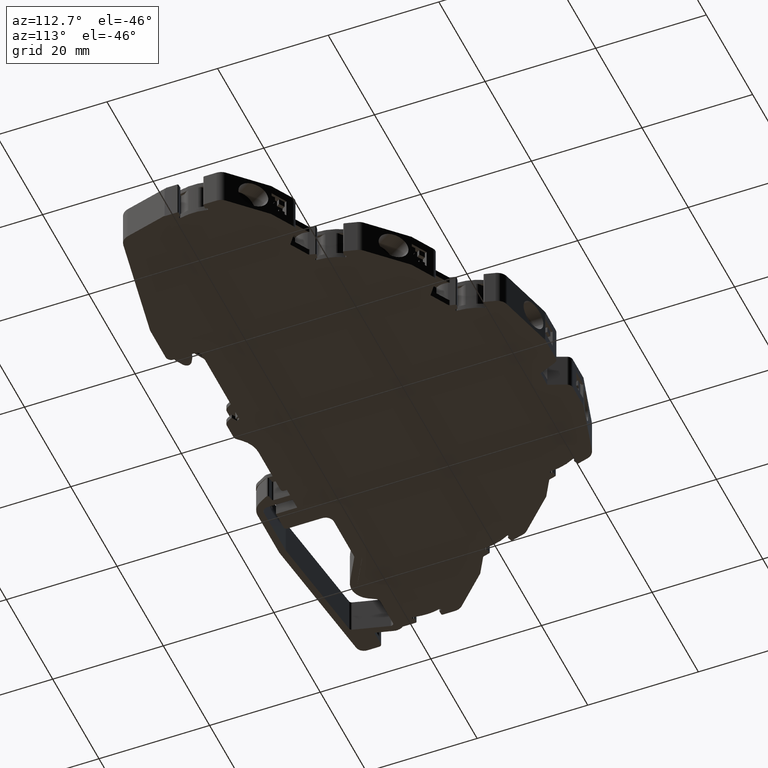
[diagram: clean part render]
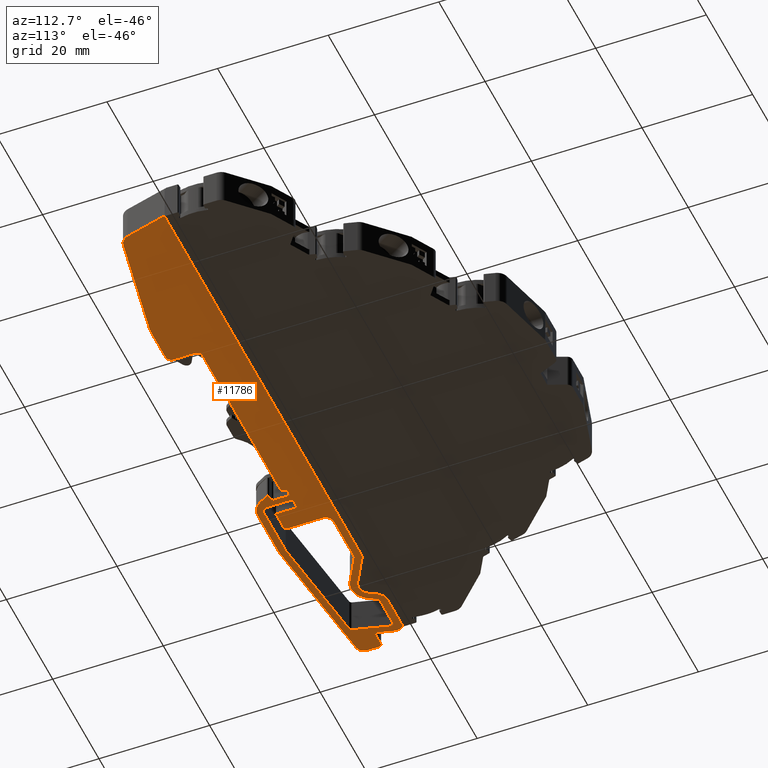
[diagram: same view with one face highlighted and labeled with its STEP entity id]
A machine part, auxiliary view. The second image highlights one B-rep face of the part: STEP entity #11786.
In plain terms, the highlighted planar face has unit normal (0, 0, -1).
Its self-contained STEP definition (entity closure, byte-faithful):
#386 = CARTESIAN_POINT ( 'NONE',  ( 1.714999999999999900, 5.453652908804101300, -0.3450000000000010300 ) ) ;
#395 = LINE ( 'NONE', #386, #14800 ) ;
#397 = DIRECTION ( 'NONE',  ( -1.000000000000000000, 0.0000000000000000000, -0.0000000000000000000 ) ) ;
#503 = CARTESIAN_POINT ( 'NONE',  ( 205.6886590453769900, 10.26804246194675900, -0.3449999999999980900 ) ) ;
#506 = DIRECTION ( 'NONE',  ( -0.0000000000000000000, -0.0000000000000000000, -1.000000000000000000 ) ) ;
#512 = DIRECTION ( 'NONE',  ( 0.0000000000000000000, 1.000000000000000000, 0.0000000000000000000 ) ) ;
#514 = LINE ( 'NONE', #518, #13462 ) ;
#516 = DIRECTION ( 'NONE',  ( 1.000000000000000000, 0.0000000000000000000, 0.0000000000000000000 ) ) ;
#517 = CARTESIAN_POINT ( 'NONE',  ( 259.2201345379305100, 11.27553656191200000, -0.3449999999999980900 ) ) ;
#518 = CARTESIAN_POINT ( 'NONE',  ( 1.714999999999999900, 5.453652308662713100, -0.3450000000000010300 ) ) ;
#521 = DIRECTION ( 'NONE',  ( 0.0000000000000000000, 0.0000000000000000000, 1.000000000000000000 ) ) ;
#522 = CARTESIAN_POINT ( 'NONE',  ( 279.8425590747290800, 6.453652283857839400, -0.3449999999999980900 ) ) ;
#524 = LINE ( 'NONE', #517, #13527 ) ;
#525 = DIRECTION ( 'NONE',  ( -0.0000000000000000000, -0.0000000000000000000, -1.000000000000000000 ) ) ;
#527 = CARTESIAN_POINT ( 'NONE',  ( 277.8425590747290800, 10.27553869041494000, -0.3449999999999980900 ) ) ;
#530 = LINE ( 'NONE', #536, #13448 ) ;
#534 = DIRECTION ( 'NONE',  ( 1.000000000000000000, 0.0000000000000000000, 0.0000000000000000000 ) ) ;
#536 = CARTESIAN_POINT ( 'NONE',  ( 241.2375600996530000, 0.0000000000000000000, -0.3450000000000010300 ) ) ;
#539 = LINE ( 'NONE', #540, #13494 ) ;
#540 = CARTESIAN_POINT ( 'NONE',  ( 1.714999999999999900, 12.93240326027163600, -0.3450000000000010300 ) ) ;
#542 = DIRECTION ( 'NONE',  ( 1.000000000000000000, 6.938892518842751900E-015, 0.0000000000000000000 ) ) ;
#546 = DIRECTION ( 'NONE',  ( 1.000000000000000000, -0.0000000000000000000, 0.0000000000000000000 ) ) ;
#548 = DIRECTION ( 'NONE',  ( 0.9999999999999935600, 1.142978427374678900E-007, 0.0000000000000000000 ) ) ;
#552 = CARTESIAN_POINT ( 'NONE',  ( 240.1156887614475000, 8.453650703092829800, -0.3449999999999980900 ) ) ;
#554 = DIRECTION ( 'NONE',  ( -1.000000000000000000, 0.0000000000000000000, -0.0000000000000000000 ) ) ;
#557 = DIRECTION ( 'NONE',  ( 1.000000000000000000, -2.891205793294622600E-015, 0.0000000000000000000 ) ) ;
#558 = CARTESIAN_POINT ( 'NONE',  ( 235.3775523067075100, 0.0000000000000000000, -0.3450000000000010300 ) ) ;
#562 = DIRECTION ( 'NONE',  ( 0.0000000000000000000, 1.000000000000000000, 0.0000000000000000000 ) ) ;
#571 = LINE ( 'NONE', #575, #13475 ) ;
#574 = DIRECTION ( 'NONE',  ( -0.0000000000000000000, -0.0000000000000000000, -1.000000000000000000 ) ) ;
#575 = CARTESIAN_POINT ( 'NONE',  ( 1.714999999999999900, 6.653654132609679200, -0.3450000000000010300 ) ) ;
#576 = DIRECTION ( 'NONE',  ( 1.000000000000000000, -0.0000000000000000000, 0.0000000000000000000 ) ) ;
#588 = LINE ( 'NONE', #558, #13471 ) ;
#596 = LINE ( 'NONE', #634, #13458 ) ;
#597 = DIRECTION ( 'NONE',  ( -0.9914448644735848200, 0.1305261686749244500, 0.0000000000000000000 ) ) ;
#598 = LINE ( 'NONE', #601, #13452 ) ;
#601 = CARTESIAN_POINT ( 'NONE',  ( 230.4926974972639800, 5.489585710628845500, -0.3450000000000010300 ) ) ;
#611 = CARTESIAN_POINT ( 'NONE',  ( 306.5945232437428000, 8.986520480360912400, -0.3450000000000010300 ) ) ;
#623 = DIRECTION ( 'NONE',  ( -0.9848077430902918400, -0.1736482339369036200, 0.0000000000000000000 ) ) ;
#632 = DIRECTION ( 'NONE',  ( 0.0000000000000000000, 1.000000000000000000, 0.0000000000000000000 ) ) ;
#634 = CARTESIAN_POINT ( 'NONE',  ( 204.1886587459640600, 0.0000000000000000000, -0.3450000000000010300 ) ) ;
#636 = LINE ( 'NONE', #611, #13541 ) ;
#642 = DIRECTION ( 'NONE',  ( -0.2587892217248280400, 0.9659338169455802300, 0.0000000000000000000 ) ) ;
#644 = LINE ( 'NONE', #661, #13663 ) ;
#645 = DIRECTION ( 'NONE',  ( -1.000000000000000000, 0.0000000000000000000, -0.0000000000000000000 ) ) ;
#652 = LINE ( 'NONE', #672, #13563 ) ;
#657 = LINE ( 'NONE', #671, #13661 ) ;
#660 = LINE ( 'NONE', #670, #13565 ) ;
#661 = CARTESIAN_POINT ( 'NONE',  ( 243.5898725184148600, 8.471114791411324100, -0.3450000000000010300 ) ) ;
#664 = LINE ( 'NONE', #696, #13591 ) ;
#667 = CARTESIAN_POINT ( 'NONE',  ( 278.8425590747290800, 0.0000000000000000000, -0.3450000000000010300 ) ) ;
#669 = LINE ( 'NONE', #681, #13559 ) ;
#670 = CARTESIAN_POINT ( 'NONE',  ( 1.714999999999999900, 16.65365054067097400, -0.3450000000000010300 ) ) ;
#671 = CARTESIAN_POINT ( 'NONE',  ( 242.3375564023443800, 0.0000000000000000000, -0.3450000000000010300 ) ) ;
#672 = CARTESIAN_POINT ( 'NONE',  ( 1.714999999999999900, 11.27553869041494600, -0.3450000000000010300 ) ) ;
#673 = LINE ( 'NONE', #667, #13557 ) ;
#675 = CARTESIAN_POINT ( 'NONE',  ( 1.714999999999999900, 16.65365165461454900, -0.3450000000000010300 ) ) ;
#677 = DIRECTION ( 'NONE',  ( -1.000000000000000000, 0.0000000000000000000, -0.0000000000000000000 ) ) ;
#678 = DIRECTION ( 'NONE',  ( -0.4999996771534385700, -0.8660255901799074300, 0.0000000000000000000 ) ) ;
#679 = LINE ( 'NONE', #675, #13603 ) ;
#681 = CARTESIAN_POINT ( 'NONE',  ( 207.4909535282767500, 12.93240327112651400, -0.3450000000000010300 ) ) ;
#682 = DIRECTION ( 'NONE',  ( -1.000000000000000000, 0.0000000000000000000, -0.0000000000000000000 ) ) ;
#685 = DIRECTION ( 'NONE',  ( 0.0000000000000000000, 1.000000000000000000, 0.0000000000000000000 ) ) ;
#686 = DIRECTION ( 'NONE',  ( -0.0000000000000000000, -1.000000000000000000, -0.0000000000000000000 ) ) ;
#689 = CARTESIAN_POINT ( 'NONE',  ( 306.2472267758689700, 10.95613596654143900, -0.3449999999999980900 ) ) ;
#696 = CARTESIAN_POINT ( 'NONE',  ( 209.9998964459480200, 9.397868660948809300, -0.3450000000000010300 ) ) ;
#700 = DIRECTION ( 'NONE',  ( 0.9914448660161235800, -0.1305261569581769600, 0.0000000000000000000 ) ) ;
#722 = DIRECTION ( 'NONE',  ( -1.000000000000000000, 0.0000000000000000000, 0.0000000000000000000 ) ) ;
#728 = DIRECTION ( 'NONE',  ( 0.0000000000000000000, 0.0000000000000000000, -1.000000000000000000 ) ) ;
#734 = DIRECTION ( 'NONE',  ( -1.000000000000000000, 0.0000000000000000000, -0.0000000000000000000 ) ) ;
#738 = LINE ( 'NONE', #771, #13621 ) ;
#749 = DIRECTION ( 'NONE',  ( 0.2588017249943155300, -0.9659304670316422000, 0.0000000000000000000 ) ) ;
#766 = DIRECTION ( 'NONE',  ( -0.0000000000000000000, -1.000000000000000000, -0.0000000000000000000 ) ) ;
#770 = LINE ( 'NONE', #774, #13605 ) ;
#771 = CARTESIAN_POINT ( 'NONE',  ( 239.2375604103144700, 0.0000000000000000000, -0.3450000000000010300 ) ) ;
#774 = CARTESIAN_POINT ( 'NONE',  ( 207.9049352689776800, 16.02425428770468900, -0.3450000000000010300 ) ) ;
#776 = LINE ( 'NONE', #777, #13640 ) ;
#777 = CARTESIAN_POINT ( 'NONE',  ( 1.714999999999999900, 8.388774649715822200, -0.3450000000000010300 ) ) ;
#783 = CARTESIAN_POINT ( 'NONE',  ( 233.8775560752951000, 15.15365165461455100, -0.3450000000000011400 ) ) ;
#787 = DIRECTION ( 'NONE',  ( 0.0000000000000000000, 0.0000000000000000000, 1.000000000000000000 ) ) ;
#792 = DIRECTION ( 'NONE',  ( 1.000000000000000000, 0.0000000000000000000, 0.0000000000000000000 ) ) ;
#823 = CARTESIAN_POINT ( 'NONE',  ( 218.2802566032234800, 16.78925736135439800, -0.3450000000000015300 ) ) ;
#829 = DIRECTION ( 'NONE',  ( 1.000000000000000000, 4.956351789211807100E-015, 0.0000000000000000000 ) ) ;
#844 = DIRECTION ( 'NONE',  ( -0.0000000000000000000, -0.0000000000000000000, -1.000000000000000000 ) ) ;
#847 = CARTESIAN_POINT ( 'NONE',  ( 224.8132370359317100, 16.51967312186624400, -0.3450000000000010300 ) ) ;
#854 = LINE ( 'NONE', #847, #13698 ) ;
#859 = DIRECTION ( 'NONE',  ( -0.8660214484722443800, -0.5000068507391031100, 0.0000000000000000000 ) ) ;
#1185 = ORIENTED_EDGE ( 'NONE', *, *, #22454, .T. ) ;
#1187 = ORIENTED_EDGE ( 'NONE', *, *, #4526, .T. ) ;
#1192 = ORIENTED_EDGE ( 'NONE', *, *, #22460, .T. ) ;
#1196 = ORIENTED_EDGE ( 'NONE', *, *, #22450, .T. ) ;
#1198 = ORIENTED_EDGE ( 'NONE', *, *, #4475, .T. ) ;
#1199 = ORIENTED_EDGE ( 'NONE', *, *, #4521, .T. ) ;
#1204 = ORIENTED_EDGE ( 'NONE', *, *, #22432, .T. ) ;
#1205 = ORIENTED_EDGE ( 'NONE', *, *, #22370, .T. ) ;
#1207 = ORIENTED_EDGE ( 'NONE', *, *, #22375, .T. ) ;
#1208 = ORIENTED_EDGE ( 'NONE', *, *, #4518, .T. ) ;
#1209 = ORIENTED_EDGE ( 'NONE', *, *, #4565, .F. ) ;
#1212 = ORIENTED_EDGE ( 'NONE', *, *, #22407, .T. ) ;
#1213 = ORIENTED_EDGE ( 'NONE', *, *, #4284, .F. ) ;
#1215 = ORIENTED_EDGE ( 'NONE', *, *, #3908, .T. ) ;
#1219 = ORIENTED_EDGE ( 'NONE', *, *, #4451, .T. ) ;
#1220 = ORIENTED_EDGE ( 'NONE', *, *, #22431, .T. ) ;
#1221 = ORIENTED_EDGE ( 'NONE', *, *, #22424, .T. ) ;
#1225 = ORIENTED_EDGE ( 'NONE', *, *, #22394, .T. ) ;
#1226 = ORIENTED_EDGE ( 'NONE', *, *, #4516, .T. ) ;
#1227 = ORIENTED_EDGE ( 'NONE', *, *, #22359, .T. ) ;
#1229 = ORIENTED_EDGE ( 'NONE', *, *, #22402, .T. ) ;
#1255 = ORIENTED_EDGE ( 'NONE', *, *, #4507, .T. ) ;
#1267 = ORIENTED_EDGE ( 'NONE', *, *, #3889, .T. ) ;
#1286 = ORIENTED_EDGE ( 'NONE', *, *, #22405, .T. ) ;
#1288 = ORIENTED_EDGE ( 'NONE', *, *, #4543, .T. ) ;
#2501 = VERTEX_POINT ( 'NONE', #16117 ) ;
#2524 = VERTEX_POINT ( 'NONE', #16181 ) ;
#2949 = ORIENTED_EDGE ( 'NONE', *, *, #22625, .T. ) ;
#2952 = ORIENTED_EDGE ( 'NONE', *, *, #22399, .T. ) ;
#2953 = ORIENTED_EDGE ( 'NONE', *, *, #22393, .T. ) ;
#2954 = ORIENTED_EDGE ( 'NONE', *, *, #22308, .T. ) ;
#2955 = ORIENTED_EDGE ( 'NONE', *, *, #3804, .F. ) ;
#2957 = ORIENTED_EDGE ( 'NONE', *, *, #22387, .T. ) ;
#2958 = ORIENTED_EDGE ( 'NONE', *, *, #4436, .F. ) ;
#2959 = ORIENTED_EDGE ( 'NONE', *, *, #22657, .T. ) ;
#2960 = ORIENTED_EDGE ( 'NONE', *, *, #22645, .T. ) ;
#2961 = ORIENTED_EDGE ( 'NONE', *, *, #22653, .T. ) ;
#2965 = ORIENTED_EDGE ( 'NONE', *, *, #4444, .F. ) ;
#2970 = ORIENTED_EDGE ( 'NONE', *, *, #22351, .T. ) ;
#2971 = ORIENTED_EDGE ( 'NONE', *, *, #4403, .F. ) ;
#2973 = ORIENTED_EDGE ( 'NONE', *, *, #22392, .T. ) ;
#2974 = ORIENTED_EDGE ( 'NONE', *, *, #22683, .T. ) ;
#2975 = ORIENTED_EDGE ( 'NONE', *, *, #4402, .F. ) ;
#2979 = ORIENTED_EDGE ( 'NONE', *, *, #22381, .T. ) ;
#2980 = ORIENTED_EDGE ( 'NONE', *, *, #22384, .T. ) ;
#2981 = ORIENTED_EDGE ( 'NONE', *, *, #22358, .T. ) ;
#2983 = ORIENTED_EDGE ( 'NONE', *, *, #22410, .T. ) ;
#2987 = ORIENTED_EDGE ( 'NONE', *, *, #22366, .T. ) ;
#2996 = ORIENTED_EDGE ( 'NONE', *, *, #22670, .T. ) ;
#2997 = ORIENTED_EDGE ( 'NONE', *, *, #22367, .T. ) ;
#2999 = ORIENTED_EDGE ( 'NONE', *, *, #22352, .T. ) ;
#3000 = ORIENTED_EDGE ( 'NONE', *, *, #22649, .T. ) ;
#3002 = ORIENTED_EDGE ( 'NONE', *, *, #3762, .T. ) ;
#3004 = ORIENTED_EDGE ( 'NONE', *, *, #22633, .T. ) ;
#3006 = ORIENTED_EDGE ( 'NONE', *, *, #22622, .F. ) ;
#3007 = ORIENTED_EDGE ( 'NONE', *, *, #22354, .T. ) ;
#3762 = EDGE_CURVE ( 'NONE', #6377, #6417, #15774, .T. ) ;
#3804 = EDGE_CURVE ( 'NONE', #6622, #6399, #15796, .T. ) ;
#3889 = EDGE_CURVE ( 'NONE', #19897, #19890, #16806, .T. ) ;
#3908 = EDGE_CURVE ( 'NONE', #19826, #6466, #16849, .T. ) ;
#4284 = EDGE_CURVE ( 'NONE', #2524, #2501, #10652, .T. ) ;
#4386 = EDGE_CURVE ( 'NONE', #18586, #18538, #15442, .T. ) ;
#4402 = EDGE_CURVE ( 'NONE', #18460, #18508, #15463, .T. ) ;
#4403 = EDGE_CURVE ( 'NONE', #18420, #18570, #15415, .T. ) ;
#4436 = EDGE_CURVE ( 'NONE', #6399, #2524, #15522, .T. ) ;
#4444 = EDGE_CURVE ( 'NONE', #18562, #18414, #15512, .T. ) ;
#4451 = EDGE_CURVE ( 'NONE', #18616, #18706, #15519, .T. ) ;
#4475 = EDGE_CURVE ( 'NONE', #18558, #2501, #15497, .T. ) ;
#4507 = EDGE_CURVE ( 'NONE', #18648, #18650, #15536, .T. ) ;
#4516 = EDGE_CURVE ( 'NONE', #18666, #18690, #15549, .T. ) ;
#4518 = EDGE_CURVE ( 'NONE', #18612, #18682, #15583, .T. ) ;
#4521 = EDGE_CURVE ( 'NONE', #18614, #18662, #15586, .T. ) ;
#4526 = EDGE_CURVE ( 'NONE', #18598, #18578, #15537, .T. ) ;
#4543 = EDGE_CURVE ( 'NONE', #18708, #18666, #9396, .T. ) ;
#4557 = EDGE_CURVE ( 'NONE', #19826, #18586, #9433, .T. ) ;
#4565 = EDGE_CURVE ( 'NONE', #18652, #18580, #15624, .T. ) ;
#5367 = CARTESIAN_POINT ( 'NONE',  ( 286.9894377300924500, 5.529613790183488800, -0.3449999999999980900 ) ) ;
#5400 = CARTESIAN_POINT ( 'NONE',  ( 204.6886600393535500, 12.93240326027161300, -0.3449999999999980900 ) ) ;
#5428 = CARTESIAN_POINT ( 'NONE',  ( 231.0409074820675800, 5.453653524218620600, -0.3449999999999980900 ) ) ;
#5433 = CARTESIAN_POINT ( 'NONE',  ( 230.4926975003542700, 5.489585710221999400, -0.3449999999999953700 ) ) ;
#5439 = CARTESIAN_POINT ( 'NONE',  ( 242.3375562073696300, 9.352473529440665300, -0.3449999999999980900 ) ) ;
#5443 = CARTESIAN_POINT ( 'NONE',  ( 286.1211965693357800, 5.453652308349819400, -0.3449999999999980900 ) ) ;
#5466 = CARTESIAN_POINT ( 'NONE',  ( 244.1875071269969300, 11.27553484483553500, -0.3449999999999980900 ) ) ;
#5488 = CARTESIAN_POINT ( 'NONE',  ( 207.9049352521168400, 16.02425435063478100, -0.3450000000000015300 ) ) ;
#5495 = CARTESIAN_POINT ( 'NONE',  ( 225.3132440525734800, 16.65365165461454900, -0.3450000000000015300 ) ) ;
#5500 = CARTESIAN_POINT ( 'NONE',  ( 235.8775522395731300, 8.388774649715820400, -0.3450000000000015300 ) ) ;
#5514 = CARTESIAN_POINT ( 'NONE',  ( 213.7397420260838000, 16.65365054067097400, -0.3450000000000015300 ) ) ;
#5518 = CARTESIAN_POINT ( 'NONE',  ( 224.8132370290159700, 16.51967311787335600, -0.3450000000000014700 ) ) ;
#5519 = CARTESIAN_POINT ( 'NONE',  ( 235.3775523067075400, 8.888774784403981500, -0.3450000000000015300 ) ) ;
#5520 = CARTESIAN_POINT ( 'NONE',  ( 243.6875479276259900, 11.77553484429126300, -0.3449999999999980900 ) ) ;
#5521 = CARTESIAN_POINT ( 'NONE',  ( 214.6057659691501600, 16.15365303187901000, -0.3450000000000015300 ) ) ;
#5525 = CARTESIAN_POINT ( 'NONE',  ( 208.3878969584820300, 16.65365062106171800, -0.3450000000000015300 ) ) ;
#5527 = CARTESIAN_POINT ( 'NONE',  ( 240.2375600996530000, 6.653654132609679200, -0.3450000000000014700 ) ) ;
#5528 = CARTESIAN_POINT ( 'NONE',  ( 204.1886587459640600, 12.43240199845012000, -0.3449999999999988600 ) ) ;
#5530 = CARTESIAN_POINT ( 'NONE',  ( 230.6493330154172000, 6.679319509955856700, -0.3449999999999980900 ) ) ;
#5540 = CARTESIAN_POINT ( 'NONE',  ( 209.9998963310931400, 9.397868676069736100, -0.3450000000000015300 ) ) ;
#5544 = CARTESIAN_POINT ( 'NONE',  ( 209.5821940771321900, 9.764190202238506100, -0.3450000000000014700 ) ) ;
#5550 = CARTESIAN_POINT ( 'NONE',  ( 231.0409112750834900, 6.653654132609679200, -0.3449999999999997000 ) ) ;
#5584 = CARTESIAN_POINT ( 'NONE',  ( 241.2375600996530000, 7.653654138968719600, -0.3450000000000014700 ) ) ;
#5597 = CARTESIAN_POINT ( 'NONE',  ( 215.2491721027668600, 15.03924830687755900, -0.3450000000000015300 ) ) ;
#5743 = CARTESIAN_POINT ( 'NONE',  ( 233.8775560752951000, 16.65365165461454900, -0.3450000000000012500 ) ) ;
#5744 = CARTESIAN_POINT ( 'NONE',  ( 205.4928697083929300, 8.780874874294710300, -0.3449999999999980900 ) ) ;
#5754 = CARTESIAN_POINT ( 'NONE',  ( 235.3775541910015400, 15.15365165461349400, -0.3450000000000011400 ) ) ;
#5757 = CARTESIAN_POINT ( 'NONE',  ( 277.8425590711572700, 11.27553869041494900, -0.3449999999999980900 ) ) ;
#5759 = CARTESIAN_POINT ( 'NONE',  ( 279.8425590747290800, 5.453652296260276700, -0.3449999999999980900 ) ) ;
#5763 = CARTESIAN_POINT ( 'NONE',  ( 207.4909535302155100, 12.93240326388992400, -0.3449999999999815400 ) ) ;
#5776 = CARTESIAN_POINT ( 'NONE',  ( 278.8425590747290800, 6.453652283857842100, -0.3449999999999988600 ) ) ;
#5777 = CARTESIAN_POINT ( 'NONE',  ( 308.1790925047513400, 10.43855041267524600, -0.3450000000000005800 ) ) ;
#5786 = CARTESIAN_POINT ( 'NONE',  ( 245.8273385436240200, 11.27553503114431200, -0.3449999999999995300 ) ) ;
#5787 = CARTESIAN_POINT ( 'NONE',  ( 278.8425590747290800, 10.27553869041494000, -0.3449999999999988600 ) ) ;
#5790 = CARTESIAN_POINT ( 'NONE',  ( 306.5945232437428000, 8.986520480360910700, -0.3449999999999980900 ) ) ;
#5795 = CARTESIAN_POINT ( 'NONE',  ( 220.0302809865872000, 13.75818171114517900, -0.3450000000000014700 ) ) ;
#5797 = CARTESIAN_POINT ( 'NONE',  ( 239.2375604103144400, 8.388774649715822200, -0.3450000000000011900 ) ) ;
#5799 = CARTESIAN_POINT ( 'NONE',  ( 240.1187706993962400, 5.453652905184855000, -0.3449999999999988600 ) ) ;
#5805 = CARTESIAN_POINT ( 'NONE',  ( 204.1886587459640600, 10.26804245728483200, -0.3449999999999988600 ) ) ;
#5855 = CARTESIAN_POINT ( 'NONE',  ( 242.7137655319872900, 6.953651671632481900, -0.3449999999999988600 ) ) ;
#5872 = CARTESIAN_POINT ( 'NONE',  ( 216.3749997513804100, 15.68925423248840400, -0.3450000000000010300 ) ) ;
#5884 = CARTESIAN_POINT ( 'NONE',  ( 310.1925530282970300, 17.95365942521603800, -0.3450000259776806500 ) ) ;
#5886 = CARTESIAN_POINT ( 'NONE',  ( 219.3802670665751600, 14.88401223435419500, -0.3450000000000010300 ) ) ;
#5896 = CARTESIAN_POINT ( 'NONE',  ( 224.1632248565719300, 17.64550302038740200, -0.3450000000000010300 ) ) ;
#5922 = CARTESIAN_POINT ( 'NONE',  ( 225.3132401042720100, 17.95365339502456000, -0.3450000000000010300 ) ) ;
#5926 = CARTESIAN_POINT ( 'NONE',  ( 213.7397384005606100, 17.95365339502480100, -0.3450000000000010300 ) ) ;
#5953 = CARTESIAN_POINT ( 'NONE',  ( 243.6875479276260100, 12.25791767009104500, -0.3450000000000000300 ) ) ;
#5967 = CARTESIAN_POINT ( 'NONE',  ( 207.0625282688686200, 17.95367167768877400, -0.3449998995928350000 ) ) ;
#5980 = CARTESIAN_POINT ( 'NONE',  ( 215.7315935278365900, 16.80365911324689800, -0.3450000000000010300 ) ) ;
#6020 = CARTESIAN_POINT ( 'NONE',  ( 239.2375604103144400, 12.25791767009105000, -0.3450000000000011900 ) ) ;
#6026 = CARTESIAN_POINT ( 'NONE',  ( 241.2375600795042800, 12.25791767009104300, -0.3450000000000009700 ) ) ;
#6377 = VERTEX_POINT ( 'NONE', #8058 ) ;
#6399 = VERTEX_POINT ( 'NONE', #8048 ) ;
#6417 = VERTEX_POINT ( 'NONE', #8043 ) ;
#6466 = VERTEX_POINT ( 'NONE', #8018 ) ;
#6622 = VERTEX_POINT ( 'NONE', #8166 ) ;
#8018 = CARTESIAN_POINT ( 'NONE',  ( 242.3375564023443800, 12.25791767009104300, -0.3450000000000009700 ) ) ;
#8043 = CARTESIAN_POINT ( 'NONE',  ( 206.5687263414161000, 16.63790005086045200, -0.3449999213865672100 ) ) ;
#8048 = CARTESIAN_POINT ( 'NONE',  ( 243.6300647457353800, 8.621114410905040200, -0.3449999999999980900 ) ) ;
#8058 = CARTESIAN_POINT ( 'NONE',  ( 206.6368591683738600, 16.12032052944478600, -0.3450000008689968500 ) ) ;
#8166 = CARTESIAN_POINT ( 'NONE',  ( 243.5898725001057400, 8.471114759699020200, -0.3449999999999988600 ) ) ;
#8301 = DIRECTION ( 'NONE',  ( 0.0000000000000000000, 0.0000000000000000000, -1.000000000000000000 ) ) ;
#8310 = DIRECTION ( 'NONE',  ( -1.000000000000000000, 0.0000000000000000000, -0.0000000000000000000 ) ) ;
#8314 = FACE_OUTER_BOUND ( 'NONE', #16067, .T. ) ;
#8324 = PLANE ( 'NONE',  #13887 ) ;
#8328 = CARTESIAN_POINT ( 'NONE',  ( 1.714999999999999900, 0.0000000000000000000, -0.3450000000000010300 ) ) ;
#8346 = FACE_BOUND ( 'NONE', #16088, .T. ) ;
#8920 = DIRECTION ( 'NONE',  ( 1.000000000000000000, 0.0000000000000000000, 0.0000000000000000000 ) ) ;
#8944 = DIRECTION ( 'NONE',  ( 0.0000000000000000000, 0.0000000000000000000, 1.000000000000000000 ) ) ;
#8945 = CARTESIAN_POINT ( 'NONE',  ( 244.1875479276260100, 11.77553484429126100, -0.3449999999999980900 ) ) ;
#8969 = DIRECTION ( 'NONE',  ( 0.0000000000000000000, 0.0000000000000000000, 1.000000000000000000 ) ) ;
#8974 = DIRECTION ( 'NONE',  ( 1.000000000000000000, 0.0000000000000000000, 0.0000000000000000000 ) ) ;
#8980 = DIRECTION ( 'NONE',  ( 0.0000000000000000000, 0.0000000000000000000, 1.000000000000000000 ) ) ;
#8981 = DIRECTION ( 'NONE',  ( 1.000000000000000000, 0.0000000000000000000, 0.0000000000000000000 ) ) ;
#8988 = CARTESIAN_POINT ( 'NONE',  ( 231.0409074266999900, 9.653654253178830300, -0.3449999999999980900 ) ) ;
#8989 = CARTESIAN_POINT ( 'NONE',  ( 204.6886600223049900, 12.43240198393047900, -0.3449999999999980900 ) ) ;
#9050 = CARTESIAN_POINT ( 'NONE',  ( 243.3300651861885600, 8.621114410905040200, -0.3449999999999980900 ) ) ;
#9054 = DIRECTION ( 'NONE',  ( 1.000000000000000000, 0.0000000000000000000, 0.0000000000000000000 ) ) ;
#9072 = DIRECTION ( 'NONE',  ( 0.0000000000000000000, 0.0000000000000000000, 1.000000000000000000 ) ) ;
#9102 = DIRECTION ( 'NONE',  ( -1.000000000000000000, -4.544975508107473600E-014, 0.0000000000000000000 ) ) ;
#9104 = DIRECTION ( 'NONE',  ( 1.000000000000000000, 0.0000000000000000000, 0.0000000000000000000 ) ) ;
#9112 = DIRECTION ( 'NONE',  ( 0.0000000000000000000, 0.0000000000000000000, 1.000000000000000000 ) ) ;
#9117 = DIRECTION ( 'NONE',  ( -0.0000000000000000000, -0.0000000000000000000, 1.000000000000000000 ) ) ;
#9121 = CARTESIAN_POINT ( 'NONE',  ( 286.1211965604079500, 10.45365250563500000, -0.3449999999999980900 ) ) ;
#9131 = CARTESIAN_POINT ( 'NONE',  ( 240.2375600996530000, 7.653654132609679200, -0.3450000000000015300 ) ) ;
#9187 = DIRECTION ( 'NONE',  ( 1.000000000000000000, 0.0000000000000000000, 0.0000000000000000000 ) ) ;
#9188 = CARTESIAN_POINT ( 'NONE',  ( 242.6375560123945000, 9.352473519374640900, -0.3449999999999980900 ) ) ;
#9194 = DIRECTION ( 'NONE',  ( 0.0000000000000000000, 0.0000000000000000000, 1.000000000000000000 ) ) ;
#9275 = DIRECTION ( 'NONE',  ( 1.000000000000000000, 0.0000000000000000000, 0.0000000000000000000 ) ) ;
#9276 = CARTESIAN_POINT ( 'NONE',  ( 225.3132438326495000, 15.65365173501764900, -0.3450000000000015300 ) ) ;
#9283 = DIRECTION ( 'NONE',  ( 0.0000000000000000000, 0.0000000000000000000, 1.000000000000000000 ) ) ;
#9320 = CARTESIAN_POINT ( 'NONE',  ( 208.3878969584820300, 16.15365433555015100, -0.3450000000000015300 ) ) ;
#9326 = DIRECTION ( 'NONE',  ( 0.0000000000000000000, 0.0000000000000000000, 1.000000000000000000 ) ) ;
#9334 = DIRECTION ( 'NONE',  ( 0.0000000000000000000, 0.0000000000000000000, 1.000000000000000000 ) ) ;
#9335 = DIRECTION ( 'NONE',  ( 1.000000000000000000, 0.0000000000000000000, 0.0000000000000000000 ) ) ;
#9338 = DIRECTION ( 'NONE',  ( 1.000000000000000000, 0.0000000000000000000, 0.0000000000000000000 ) ) ;
#9343 = CARTESIAN_POINT ( 'NONE',  ( 231.0409112750834900, 9.653653762232970300, -0.3449999999999980900 ) ) ;
#9345 = DIRECTION ( 'NONE',  ( 1.000000000000000000, 0.0000000000000000000, 0.0000000000000000000 ) ) ;
#9346 = CARTESIAN_POINT ( 'NONE',  ( 210.0651592947155600, 9.893591124185110900, -0.3450000000000015300 ) ) ;
#9347 = DIRECTION ( 'NONE',  ( 0.0000000000000000000, 0.0000000000000000000, 1.000000000000000000 ) ) ;
#9350 = CARTESIAN_POINT ( 'NONE',  ( 213.7397420036700500, 15.65365054067105200, -0.3450000000000015300 ) ) ;
#9351 = DIRECTION ( 'NONE',  ( 1.000000000000000000, 0.0000000000000000000, 0.0000000000000000000 ) ) ;
#9356 = DIRECTION ( 'NONE',  ( 0.0000000000000000000, 0.0000000000000000000, 1.000000000000000000 ) ) ;
#9358 = CARTESIAN_POINT ( 'NONE',  ( 261.0085742978744700, -64.21783575730900400, -0.3450000000000015300 ) ) ;
#9396 = LINE ( 'NONE', #9358, #15599 ) ;
#9398 = DIRECTION ( 'NONE',  ( -0.5000024861834988500, 0.8660239683809679600, 0.0000000000000000000 ) ) ;
#9433 = LINE ( 'NONE', #9441, #15643 ) ;
#9434 = DIRECTION ( 'NONE',  ( -0.0000000000000000000, -1.000000000000000000, 0.0000000000000000000 ) ) ;
#9441 = CARTESIAN_POINT ( 'NONE',  ( 243.6875479276259900, -68.63886737773900400, -0.3449999999999980900 ) ) ;
#9468 = CARTESIAN_POINT ( 'NONE',  ( 235.8775523004125600, 8.888774643417500300, -0.3450000000000015300 ) ) ;
#9490 = DIRECTION ( 'NONE',  ( 0.0000000000000000000, 0.0000000000000000000, 1.000000000000000000 ) ) ;
#9491 = DIRECTION ( 'NONE',  ( 1.000000000000000000, 0.0000000000000000000, 0.0000000000000000000 ) ) ;
#10620 = CARTESIAN_POINT ( 'NONE',  ( 272.0001128077207100, 3.870599332726695400, -0.3449999999999980900 ) ) ;
#10640 = DIRECTION ( 'NONE',  ( -0.9848086964522768700, 0.1736428270674231800, 0.0000000000000000000 ) ) ;
#10652 = LINE ( 'NONE', #10620, #15317 ) ;
#11786 = ADVANCED_FACE ( 'NONE', ( #8346, #8314 ), #8324, .T. ) ;
#13434 = CIRCLE ( 'NONE', #13532, 1.000000000000000900 ) ;
#13445 = AXIS2_PLACEMENT_3D ( 'NONE', #522, #506, #534 ) ;
#13448 = VECTOR ( 'NONE', #512, 1000.000000000000000 ) ;
#13452 = VECTOR ( 'NONE', #597, 1000.000000000000100 ) ;
#13458 = VECTOR ( 'NONE', #632, 1000.000000000000000 ) ;
#13462 = VECTOR ( 'NONE', #554, 1000.000000000000000 ) ;
#13471 = VECTOR ( 'NONE', #562, 1000.000000000000000 ) ;
#13475 = VECTOR ( 'NONE', #576, 1000.000000000000000 ) ;
#13485 = CIRCLE ( 'NONE', #13515, 3.000000000000058200 ) ;
#13494 = VECTOR ( 'NONE', #546, 1000.000000000000000 ) ;
#13498 = CIRCLE ( 'NONE', #13445, 1.000000000000000900 ) ;
#13507 = AXIS2_PLACEMENT_3D ( 'NONE', #503, #525, #542 ) ;
#13511 = CIRCLE ( 'NONE', #13507, 1.500000299413301000 ) ;
#13515 = AXIS2_PLACEMENT_3D ( 'NONE', #552, #574, #557 ) ;
#13527 = VECTOR ( 'NONE', #548, 999.9999999999998900 ) ;
#13532 = AXIS2_PLACEMENT_3D ( 'NONE', #527, #521, #516 ) ;
#13541 = VECTOR ( 'NONE', #623, 1000.000000000000100 ) ;
#13557 = VECTOR ( 'NONE', #685, 1000.000000000000000 ) ;
#13559 = VECTOR ( 'NONE', #642, 1000.000000000000100 ) ;
#13563 = VECTOR ( 'NONE', #677, 1000.000000000000000 ) ;
#13565 = VECTOR ( 'NONE', #645, 1000.000000000000000 ) ;
#13591 = VECTOR ( 'NONE', #700, 1000.000000000000200 ) ;
#13599 = CIRCLE ( 'NONE', #13628, 1.999999999999946300 ) ;
#13603 = VECTOR ( 'NONE', #682, 1000.000000000000000 ) ;
#13605 = VECTOR ( 'NONE', #749, 1000.000000000000100 ) ;
#13621 = VECTOR ( 'NONE', #766, 1000.000000000000000 ) ;
#13628 = AXIS2_PLACEMENT_3D ( 'NONE', #689, #728, #722 ) ;
#13640 = VECTOR ( 'NONE', #734, 1000.000000000000000 ) ;
#13661 = VECTOR ( 'NONE', #686, 1000.000000000000000 ) ;
#13663 = VECTOR ( 'NONE', #678, 1000.000000000000100 ) ;
#13674 = AXIS2_PLACEMENT_3D ( 'NONE', #823, #844, #829 ) ;
#13698 = VECTOR ( 'NONE', #859, 1000.000000000000000 ) ;
#13730 = CIRCLE ( 'NONE', #13782, 1.500000000000001300 ) ;
#13772 = CIRCLE ( 'NONE', #13674, 3.500000705665557100 ) ;
#13782 = AXIS2_PLACEMENT_3D ( 'NONE', #783, #787, #792 ) ;
#13887 = AXIS2_PLACEMENT_3D ( 'NONE', #8328, #8301, #8310 ) ;
#14088 = CIRCLE ( 'NONE', #14155, 2.200000000000007300 ) ;
#14150 = AXIS2_PLACEMENT_3D ( 'NONE', #20382, #20380, #20363 ) ;
#14155 = AXIS2_PLACEMENT_3D ( 'NONE', #20345, #20307, #20331 ) ;
#14190 = CIRCLE ( 'NONE', #14261, 2.299999999999996300 ) ;
#14199 = CIRCLE ( 'NONE', #14150, 2.299999999999996300 ) ;
#14201 = VECTOR ( 'NONE', #20404, 1000.000000000000000 ) ;
#14217 = VECTOR ( 'NONE', #20427, 1000.000000000000100 ) ;
#14219 = AXIS2_PLACEMENT_3D ( 'NONE', #20341, #20336, #20342 ) ;
#14226 = VECTOR ( 'NONE', #20356, 1000.000000000000000 ) ;
#14247 = CIRCLE ( 'NONE', #14219, 2.000006238983387300 ) ;
#14261 = AXIS2_PLACEMENT_3D ( 'NONE', #20408, #20401, #20402 ) ;
#14323 = VECTOR ( 'NONE', #20486, 1000.000000000000200 ) ;
#14325 = VECTOR ( 'NONE', #20436, 1000.000000000000000 ) ;
#14800 = VECTOR ( 'NONE', #397, 1000.000000000000000 ) ;
#15317 = VECTOR ( 'NONE', #10640, 1000.000000000000100 ) ;
#15415 = CIRCLE ( 'NONE', #15465, 0.5000012763415606600 ) ;
#15442 = CIRCLE ( 'NONE', #15449, 0.5000000000000004400 ) ;
#15449 = AXIS2_PLACEMENT_3D ( 'NONE', #8945, #8944, #8920 ) ;
#15463 = CIRCLE ( 'NONE', #15464, 4.200000113546070500 ) ;
#15464 = AXIS2_PLACEMENT_3D ( 'NONE', #8988, #8980, #8974 ) ;
#15465 = AXIS2_PLACEMENT_3D ( 'NONE', #8989, #8969, #8981 ) ;
#15472 = AXIS2_PLACEMENT_3D ( 'NONE', #9050, #9072, #9054 ) ;
#15492 = AXIS2_PLACEMENT_3D ( 'NONE', #9188, #9194, #9187 ) ;
#15497 = CIRCLE ( 'NONE', #15492, 0.3000000000000502300 ) ;
#15511 = AXIS2_PLACEMENT_3D ( 'NONE', #9121, #9117, #9102 ) ;
#15512 = CIRCLE ( 'NONE', #15511, 4.999999998846815800 ) ;
#15519 = CIRCLE ( 'NONE', #15520, 1.000000000000000900 ) ;
#15520 = AXIS2_PLACEMENT_3D ( 'NONE', #9131, #9112, #9104 ) ;
#15522 = CIRCLE ( 'NONE', #15472, 0.2999995595467930300 ) ;
#15536 = CIRCLE ( 'NONE', #15577, 0.9999999196216302600 ) ;
#15537 = CIRCLE ( 'NONE', #15552, 0.4999963659023387600 ) ;
#15540 = AXIS2_PLACEMENT_3D ( 'NONE', #9346, #9326, #9351 ) ;
#15549 = CIRCLE ( 'NONE', #15564, 1.000000000000000900 ) ;
#15552 = AXIS2_PLACEMENT_3D ( 'NONE', #9320, #9334, #9338 ) ;
#15561 = AXIS2_PLACEMENT_3D ( 'NONE', #9343, #9347, #9335 ) ;
#15564 = AXIS2_PLACEMENT_3D ( 'NONE', #9350, #9356, #9345 ) ;
#15577 = AXIS2_PLACEMENT_3D ( 'NONE', #9276, #9283, #9275 ) ;
#15583 = CIRCLE ( 'NONE', #15540, 0.5000000000000282000 ) ;
#15586 = CIRCLE ( 'NONE', #15561, 2.999999629623300900 ) ;
#15598 = AXIS2_PLACEMENT_3D ( 'NONE', #9468, #9490, #9491 ) ;
#15599 = VECTOR ( 'NONE', #9398, 1000.000000000000100 ) ;
#15624 = CIRCLE ( 'NONE', #15598, 0.4999999937054799800 ) ;
#15643 = VECTOR ( 'NONE', #9434, 1000.000000000000000 ) ;
#15735 = AXIS2_PLACEMENT_3D ( 'NONE', #16444, #16421, #16430 ) ;
#15774 = CIRCLE ( 'NONE', #15735, 2.000006238983387300 ) ;
#15794 = AXIS2_PLACEMENT_3D ( 'NONE', #16543, #16551, #16554 ) ;
#15796 = CIRCLE ( 'NONE', #15794, 0.2999995595467930300 ) ;
#15952 = VECTOR ( 'NONE', #16817, 1000.000000000000000 ) ;
#15987 = VECTOR ( 'NONE', #16854, 1000.000000000000000 ) ;
#16067 = EDGE_LOOP ( 'NONE', ( #1215, #1225, #1198, #1213, #2958, #2955, #2953, #2987, #2954, #2975, #2979, #3007, #2980, #2971, #2970, #2973, #3002, #2949, #2996, #3004, #3000, #3006, #2961, #2959, #2960, #2974, #2983, #2957, #2965, #2997, #2999, #2952, #2981, #20851, #20855, #20871, #20866 ) ) ;
#16088 = EDGE_LOOP ( 'NONE', ( #1212, #1199, #1207, #1219, #1227, #1267, #1220, #1204, #1209, #1205, #1196, #1286, #1255, #1192, #1185, #1288, #1226, #1229, #1187, #1221, #1208 ) ) ;
#16117 = CARTESIAN_POINT ( 'NONE',  ( 242.5854631642743300, 9.057030910438957200, -0.3449999999999980900 ) ) ;
#16181 = CARTESIAN_POINT ( 'NONE',  ( 243.3821580056267400, 8.916556577646437300, -0.3449999999999980900 ) ) ;
#16421 = DIRECTION ( 'NONE',  ( 0.0000000000000000000, 0.0000000000000000000, -1.000000000000000000 ) ) ;
#16430 = DIRECTION ( 'NONE',  ( -1.000000000000000000, 0.0000000000000000000, 0.0000000000000000000 ) ) ;
#16444 = CARTESIAN_POINT ( 'NONE',  ( 208.5687325803994800, 16.63790005086045200, -0.3449999213865672100 ) ) ;
#16543 = CARTESIAN_POINT ( 'NONE',  ( 243.3300651861885600, 8.621114410905040200, -0.3449999999999980900 ) ) ;
#16551 = DIRECTION ( 'NONE',  ( 0.0000000000000000000, 0.0000000000000000000, 1.000000000000000000 ) ) ;
#16554 = DIRECTION ( 'NONE',  ( 1.000000000000000000, 0.0000000000000000000, 0.0000000000000000000 ) ) ;
#16806 = LINE ( 'NONE', #16816, #15952 ) ;
#16816 = CARTESIAN_POINT ( 'NONE',  ( 1.714999999999999900, 12.25791767009104300, -0.3450000000000010300 ) ) ;
#16817 = DIRECTION ( 'NONE',  ( -1.000000000000000000, 0.0000000000000000000, -0.0000000000000000000 ) ) ;
#16849 = LINE ( 'NONE', #16873, #15987 ) ;
#16854 = DIRECTION ( 'NONE',  ( -1.000000000000000000, 0.0000000000000000000, -0.0000000000000000000 ) ) ;
#16873 = CARTESIAN_POINT ( 'NONE',  ( 1.714999999999999900, 12.25791767009104300, -0.3450000000000010300 ) ) ;
#18414 = VERTEX_POINT ( 'NONE', #5367 ) ;
#18420 = VERTEX_POINT ( 'NONE', #5400 ) ;
#18460 = VERTEX_POINT ( 'NONE', #5433 ) ;
#18508 = VERTEX_POINT ( 'NONE', #5428 ) ;
#18538 = VERTEX_POINT ( 'NONE', #5466 ) ;
#18558 = VERTEX_POINT ( 'NONE', #5439 ) ;
#18562 = VERTEX_POINT ( 'NONE', #5443 ) ;
#18570 = VERTEX_POINT ( 'NONE', #5528 ) ;
#18578 = VERTEX_POINT ( 'NONE', #5488 ) ;
#18580 = VERTEX_POINT ( 'NONE', #5500 ) ;
#18586 = VERTEX_POINT ( 'NONE', #5520 ) ;
#18598 = VERTEX_POINT ( 'NONE', #5525 ) ;
#18612 = VERTEX_POINT ( 'NONE', #5544 ) ;
#18614 = VERTEX_POINT ( 'NONE', #5530 ) ;
#18616 = VERTEX_POINT ( 'NONE', #5527 ) ;
#18648 = VERTEX_POINT ( 'NONE', #5495 ) ;
#18650 = VERTEX_POINT ( 'NONE', #5518 ) ;
#18652 = VERTEX_POINT ( 'NONE', #5519 ) ;
#18662 = VERTEX_POINT ( 'NONE', #5550 ) ;
#18666 = VERTEX_POINT ( 'NONE', #5521 ) ;
#18682 = VERTEX_POINT ( 'NONE', #5540 ) ;
#18690 = VERTEX_POINT ( 'NONE', #5514 ) ;
#18706 = VERTEX_POINT ( 'NONE', #5584 ) ;
#18708 = VERTEX_POINT ( 'NONE', #5597 ) ;
#18910 = VERTEX_POINT ( 'NONE', #5744 ) ;
#18913 = VERTEX_POINT ( 'NONE', #5776 ) ;
#18917 = VERTEX_POINT ( 'NONE', #5763 ) ;
#18919 = VERTEX_POINT ( 'NONE', #5786 ) ;
#18921 = VERTEX_POINT ( 'NONE', #5787 ) ;
#18922 = VERTEX_POINT ( 'NONE', #5795 ) ;
#18931 = VERTEX_POINT ( 'NONE', #5797 ) ;
#18939 = VERTEX_POINT ( 'NONE', #5799 ) ;
#18942 = VERTEX_POINT ( 'NONE', #5790 ) ;
#18943 = VERTEX_POINT ( 'NONE', #5754 ) ;
#18945 = VERTEX_POINT ( 'NONE', #5777 ) ;
#18947 = VERTEX_POINT ( 'NONE', #5805 ) ;
#18956 = VERTEX_POINT ( 'NONE', #5743 ) ;
#18961 = VERTEX_POINT ( 'NONE', #5757 ) ;
#18963 = VERTEX_POINT ( 'NONE', #5759 ) ;
#18971 = VERTEX_POINT ( 'NONE', #5855 ) ;
#19041 = VERTEX_POINT ( 'NONE', #5872 ) ;
#19062 = VERTEX_POINT ( 'NONE', #5884 ) ;
#19069 = VERTEX_POINT ( 'NONE', #5922 ) ;
#19071 = VERTEX_POINT ( 'NONE', #5886 ) ;
#19077 = VERTEX_POINT ( 'NONE', #5926 ) ;
#19082 = VERTEX_POINT ( 'NONE', #5896 ) ;
#19145 = VERTEX_POINT ( 'NONE', #5980 ) ;
#19155 = VERTEX_POINT ( 'NONE', #5967 ) ;
#19826 = VERTEX_POINT ( 'NONE', #5953 ) ;
#19890 = VERTEX_POINT ( 'NONE', #6020 ) ;
#19897 = VERTEX_POINT ( 'NONE', #6026 ) ;
#20307 = DIRECTION ( 'NONE',  ( 0.0000000000000000000, 0.0000000000000000000, -1.000000000000000000 ) ) ;
#20331 = DIRECTION ( 'NONE',  ( -1.000000000000000000, 0.0000000000000000000, 0.0000000000000000000 ) ) ;
#20336 = DIRECTION ( 'NONE',  ( 0.0000000000000000000, 0.0000000000000000000, -1.000000000000000000 ) ) ;
#20341 = CARTESIAN_POINT ( 'NONE',  ( 208.5687325803994800, 16.63790005086045200, -0.3449999213865672100 ) ) ;
#20342 = DIRECTION ( 'NONE',  ( -1.000000000000000000, 0.0000000000000000000, 0.0000000000000000000 ) ) ;
#20345 = CARTESIAN_POINT ( 'NONE',  ( 218.2802524818185400, 16.78925970209224900, -0.3450000000000010300 ) ) ;
#20354 = LINE ( 'NONE', #20375, #14226 ) ;
#20356 = DIRECTION ( 'NONE',  ( 1.000000000000000000, 3.117545924460120400E-015, -0.0000000000000000000 ) ) ;
#20363 = DIRECTION ( 'NONE',  ( -1.000000000000000000, 0.0000000000000000000, 0.0000000000000000000 ) ) ;
#20375 = CARTESIAN_POINT ( 'NONE',  ( 303.5153811690519800, 17.95365339502480100, -0.3450000000000010300 ) ) ;
#20380 = DIRECTION ( 'NONE',  ( 0.0000000000000000000, 0.0000000000000000000, -1.000000000000000000 ) ) ;
#20382 = CARTESIAN_POINT ( 'NONE',  ( 213.7397384005606100, 15.65365339502480100, -0.3450000000000010300 ) ) ;
#20393 = LINE ( 'NONE', #20395, #14217 ) ;
#20395 = CARTESIAN_POINT ( 'NONE',  ( 219.3802670665749900, 14.88401223435410100, -0.3450000000000010300 ) ) ;
#20398 = CARTESIAN_POINT ( 'NONE',  ( 215.7315935278365400, 16.80365911324700100, -0.3450000000000010300 ) ) ;
#20401 = DIRECTION ( 'NONE',  ( 0.0000000000000000000, 0.0000000000000000000, -1.000000000000000000 ) ) ;
#20402 = DIRECTION ( 'NONE',  ( -1.000000000000000000, 0.0000000000000000000, 0.0000000000000000000 ) ) ;
#20404 = DIRECTION ( 'NONE',  ( 0.5000024861835499200, -0.8660239683809386500, -0.0000000000000000000 ) ) ;
#20408 = CARTESIAN_POINT ( 'NONE',  ( 225.3132401042720100, 15.65365339502480100, -0.3450000000000010300 ) ) ;
#20426 = LINE ( 'NONE', #20398, #14201 ) ;
#20427 = DIRECTION ( 'NONE',  ( 0.8660215762446127300, 0.5000066294348468600, -0.0000000000000000000 ) ) ;
#20436 = DIRECTION ( 'NONE',  ( 1.000000000000000000, -0.0000000000000000000, 0.0000000000000000000 ) ) ;
#20459 = LINE ( 'NONE', #20471, #14325 ) ;
#20471 = CARTESIAN_POINT ( 'NONE',  ( 1.714999999999999900, 17.95365339502480500, -0.3450000000000010300 ) ) ;
#20477 = LINE ( 'NONE', #20484, #14323 ) ;
#20484 = CARTESIAN_POINT ( 'NONE',  ( 308.1790925047513400, 10.43855041267527100, -0.3450000000000010300 ) ) ;
#20486 = DIRECTION ( 'NONE',  ( -0.2587927769330645700, -0.9659328644410402100, -0.0000000000000000000 ) ) ;
#20851 = ORIENTED_EDGE ( 'NONE', *, *, #22395, .T. ) ;
#20855 = ORIENTED_EDGE ( 'NONE', *, *, #22353, .F. ) ;
#20866 = ORIENTED_EDGE ( 'NONE', *, *, #4557, .F. ) ;
#20871 = ORIENTED_EDGE ( 'NONE', *, *, #4386, .F. ) ;
#22308 = EDGE_CURVE ( 'NONE', #18939, #18508, #395, .T. ) ;
#22351 = EDGE_CURVE ( 'NONE', #18420, #18917, #539, .T. ) ;
#22352 = EDGE_CURVE ( 'NONE', #18963, #18913, #13498, .T. ) ;
#22353 = EDGE_CURVE ( 'NONE', #18538, #18919, #524, .T. ) ;
#22354 = EDGE_CURVE ( 'NONE', #18910, #18947, #13511, .T. ) ;
#22358 = EDGE_CURVE ( 'NONE', #18921, #18961, #13434, .T. ) ;
#22359 = EDGE_CURVE ( 'NONE', #18706, #19897, #530, .T. ) ;
#22366 = EDGE_CURVE ( 'NONE', #18971, #18939, #13485, .T. ) ;
#22367 = EDGE_CURVE ( 'NONE', #18562, #18963, #514, .T. ) ;
#22370 = EDGE_CURVE ( 'NONE', #18652, #18943, #588, .T. ) ;
#22375 = EDGE_CURVE ( 'NONE', #18662, #18616, #571, .T. ) ;
#22381 = EDGE_CURVE ( 'NONE', #18460, #18910, #598, .T. ) ;
#22384 = EDGE_CURVE ( 'NONE', #18947, #18570, #596, .T. ) ;
#22387 = EDGE_CURVE ( 'NONE', #18942, #18414, #636, .T. ) ;
#22392 = EDGE_CURVE ( 'NONE', #18917, #6377, #669, .T. ) ;
#22393 = EDGE_CURVE ( 'NONE', #6622, #18971, #644, .T. ) ;
#22394 = EDGE_CURVE ( 'NONE', #6466, #18558, #657, .T. ) ;
#22395 = EDGE_CURVE ( 'NONE', #18961, #18919, #652, .T. ) ;
#22399 = EDGE_CURVE ( 'NONE', #18913, #18921, #673, .T. ) ;
#22402 = EDGE_CURVE ( 'NONE', #18690, #18598, #660, .T. ) ;
#22405 = EDGE_CURVE ( 'NONE', #18956, #18648, #679, .T. ) ;
#22407 = EDGE_CURVE ( 'NONE', #18682, #18614, #664, .T. ) ;
#22410 = EDGE_CURVE ( 'NONE', #18945, #18942, #13599, .T. ) ;
#22424 = EDGE_CURVE ( 'NONE', #18578, #18612, #770, .T. ) ;
#22431 = EDGE_CURVE ( 'NONE', #19890, #18931, #738, .T. ) ;
#22432 = EDGE_CURVE ( 'NONE', #18931, #18580, #776, .T. ) ;
#22450 = EDGE_CURVE ( 'NONE', #18943, #18956, #13730, .T. ) ;
#22454 = EDGE_CURVE ( 'NONE', #18922, #18708, #13772, .T. ) ;
#22460 = EDGE_CURVE ( 'NONE', #18650, #18922, #854, .T. ) ;
#22622 = EDGE_CURVE ( 'NONE', #19071, #19041, #14088, .T. ) ;
#22625 = EDGE_CURVE ( 'NONE', #6417, #19155, #14247, .T. ) ;
#22633 = EDGE_CURVE ( 'NONE', #19077, #19145, #14199, .T. ) ;
#22645 = EDGE_CURVE ( 'NONE', #19069, #19062, #20354, .T. ) ;
#22649 = EDGE_CURVE ( 'NONE', #19145, #19041, #20426, .T. ) ;
#22653 = EDGE_CURVE ( 'NONE', #19071, #19082, #20393, .T. ) ;
#22657 = EDGE_CURVE ( 'NONE', #19082, #19069, #14190, .T. ) ;
#22670 = EDGE_CURVE ( 'NONE', #19155, #19077, #20459, .T. ) ;
#22683 = EDGE_CURVE ( 'NONE', #19062, #18945, #20477, .T. ) ;